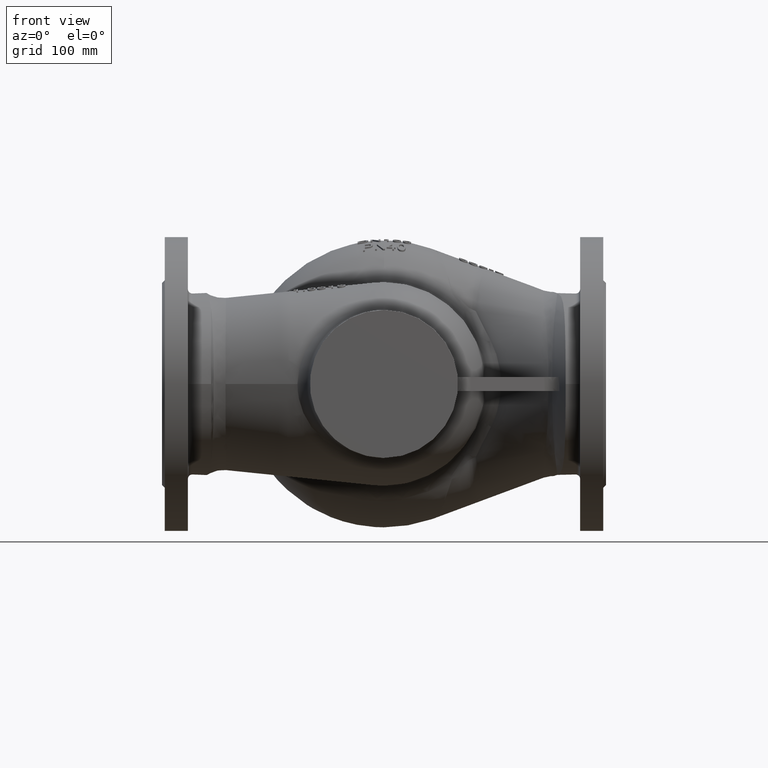
[diagram: clean part render]
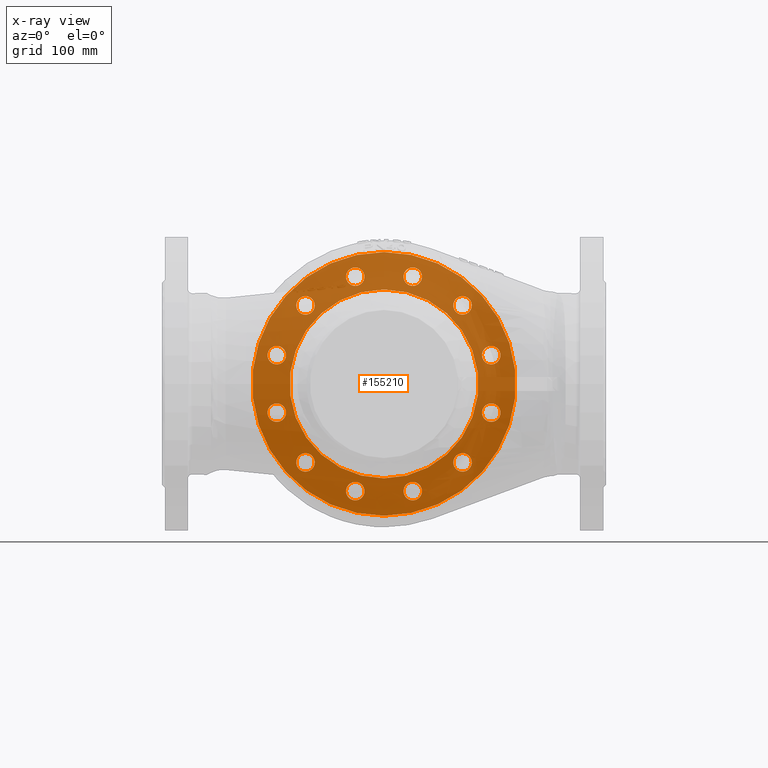
[diagram: x-ray — body ghosted, one internal face saturated and labeled with its STEP entity id]
A machine part, front view, then the same camera in x-ray: the body is ghosted and one INTERNAL B-rep face — a face not visible from any outside direction — is saturated and labeled: STEP entity #155210.
In plain terms, the highlighted planar face has unit normal (-0, 1, 0).
Its self-contained STEP definition (entity closure, byte-faithful):
#1566 = FACE_BOUND ( 'NONE', #41767, .T. ) ;
#2777 = EDGE_CURVE ( 'NONE', #49363, #27866, #170556, .T. ) ;
#3588 = ORIENTED_EDGE ( 'NONE', *, *, #113644, .F. ) ;
#4323 = EDGE_LOOP ( 'NONE', ( #37370, #74151 ) ) ;
#4451 = ORIENTED_EDGE ( 'NONE', *, *, #37313, .F. ) ;
#4462 = DIRECTION ( 'NONE',  ( 0.0000000000000000000, 0.0000000000000000000, 1.000000000000000000 ) ) ;
#4593 = CARTESIAN_POINT ( 'NONE',  ( 115.9110991546884900, 165.0000000000000000, 31.05828541230133100 ) ) ;
#4801 = CARTESIAN_POINT ( 'NONE',  ( -124.5713531925324400, 165.0000000000000000, 36.05828541230302200 ) ) ;
#5399 = DIRECTION ( 'NONE',  ( 0.0000000000000000000, 0.0000000000000000000, 1.000000000000000000 ) ) ;
#6476 = FACE_BOUND ( 'NONE', #88630, .T. ) ;
#7048 = CARTESIAN_POINT ( 'NONE',  ( 31.05828541230254600, 165.0000000000000000, -125.9110991546881700 ) ) ;
#7117 = VERTEX_POINT ( 'NONE', #4801 ) ;
#7181 = ORIENTED_EDGE ( 'NONE', *, *, #11656, .F. ) ;
#7432 = DIRECTION ( 'NONE',  ( -0.0000000000000000000, 1.000000000000000000, -0.0000000000000000000 ) ) ;
#7672 = EDGE_CURVE ( 'NONE', #27866, #49363, #106890, .T. ) ;
#7887 = CARTESIAN_POINT ( 'NONE',  ( -31.05828541230173600, 165.0000000000000000, 115.9110991546883900 ) ) ;
#8056 = CIRCLE ( 'NONE', #115933, 10.00000000000000900 ) ;
#8603 = EDGE_CURVE ( 'NONE', #198834, #57468, #45863, .T. ) ;
#8755 = DIRECTION ( 'NONE',  ( 0.0000000000000000000, 0.0000000000000000000, 1.000000000000000000 ) ) ;
#9073 = DIRECTION ( 'NONE',  ( 0.0000000000000000000, 0.0000000000000000000, 1.000000000000000000 ) ) ;
#10765 = DIRECTION ( 'NONE',  ( -0.0000000000000000000, 1.000000000000000000, -0.0000000000000000000 ) ) ;
#10836 = EDGE_CURVE ( 'NONE', #7117, #61331, #89666, .T. ) ;
#11003 = EDGE_LOOP ( 'NONE', ( #116525, #23359 ) ) ;
#11124 = AXIS2_PLACEMENT_3D ( 'NONE', #31817, #140964, #47545 ) ;
#11320 = CARTESIAN_POINT ( 'NONE',  ( -36.05828541230258100, 165.0000000000000000, -124.5713531925325400 ) ) ;
#11656 = EDGE_CURVE ( 'NONE', #190858, #179636, #28589, .T. ) ;
#14538 = CARTESIAN_POINT ( 'NONE',  ( 31.05828541230254600, 165.0000000000000000, -115.9110991546881700 ) ) ;
#15091 = CIRCLE ( 'NONE', #177538, 142.5000000000000000 ) ;
#15852 = CIRCLE ( 'NONE', #79934, 10.00000000000000900 ) ;
#17120 = ORIENTED_EDGE ( 'NONE', *, *, #122820, .F. ) ;
#17903 = ORIENTED_EDGE ( 'NONE', *, *, #2777, .F. ) ;
#18729 = CARTESIAN_POINT ( 'NONE',  ( 26.05828541230330600, 165.0000000000000000, 107.2508451168436100 ) ) ;
#19380 = EDGE_CURVE ( 'NONE', #61331, #7117, #35668, .T. ) ;
#20000 = CIRCLE ( 'NONE', #146122, 10.00000000000000900 ) ;
#20008 = AXIS2_PLACEMENT_3D ( 'NONE', #182807, #89288, #198478 ) ;
#20283 = DIRECTION ( 'NONE',  ( 0.0000000000000000000, 0.0000000000000000000, 1.000000000000000000 ) ) ;
#21574 = DIRECTION ( 'NONE',  ( -0.0000000000000000000, 1.000000000000000000, -0.0000000000000000000 ) ) ;
#22186 = ORIENTED_EDGE ( 'NONE', *, *, #200141, .F. ) ;
#22308 = CIRCLE ( 'NONE', #36040, 10.00000000000000900 ) ;
#22891 = EDGE_CURVE ( 'NONE', #161637, #155913, #116118, .T. ) ;
#23359 = ORIENTED_EDGE ( 'NONE', *, *, #10836, .F. ) ;
#23569 = VERTEX_POINT ( 'NONE', #171201 ) ;
#23593 = DIRECTION ( 'NONE',  ( 0.0000000000000000000, 0.0000000000000000000, 1.000000000000000000 ) ) ;
#23810 = DIRECTION ( 'NONE',  ( -0.0000000000000000000, 1.000000000000000000, -0.0000000000000000000 ) ) ;
#24488 = AXIS2_PLACEMENT_3D ( 'NONE', #39583, #148728, #55309 ) ;
#25398 = AXIS2_PLACEMENT_3D ( 'NONE', #91141, #200316, #106831 ) ;
#25973 = DIRECTION ( 'NONE',  ( -0.0000000000000000000, 1.000000000000000000, -0.0000000000000000000 ) ) ;
#27866 = VERTEX_POINT ( 'NONE', #44115 ) ;
#28589 = CIRCLE ( 'NONE', #72341, 10.00000000000000900 ) ;
#28995 = PLANE ( 'NONE',  #88879 ) ;
#30246 = DIRECTION ( 'NONE',  ( 0.0000000000000000000, 0.0000000000000000000, 1.000000000000000000 ) ) ;
#31343 = CARTESIAN_POINT ( 'NONE',  ( 31.05828541230338400, 165.0000000000000000, 115.9110991546879500 ) ) ;
#31817 = CARTESIAN_POINT ( 'NONE',  ( 84.85281374238644500, 165.0000000000000000, 84.85281374238493900 ) ) ;
#34099 = EDGE_CURVE ( 'NONE', #103214, #185852, #191344, .T. ) ;
#35668 = CIRCLE ( 'NONE', #25398, 10.00000000000000500 ) ;
#36040 = AXIS2_PLACEMENT_3D ( 'NONE', #115032, #21574, #130742 ) ;
#37313 = EDGE_CURVE ( 'NONE', #179636, #190858, #8056, .T. ) ;
#37370 = ORIENTED_EDGE ( 'NONE', *, *, #42630, .T. ) ;
#38198 = FACE_BOUND ( 'NONE', #88920, .T. ) ;
#39583 = CARTESIAN_POINT ( 'NONE',  ( -31.05828541230256700, 165.0000000000000000, -115.9110991546881600 ) ) ;
#39700 = EDGE_CURVE ( 'NONE', #182898, #102911, #42147, .T. ) ;
#40381 = DIRECTION ( 'NONE',  ( -0.0000000000000000000, 1.000000000000000000, -0.0000000000000000000 ) ) ;
#41767 = EDGE_LOOP ( 'NONE', ( #7181, #4451 ) ) ;
#42147 = CIRCLE ( 'NONE', #24488, 10.00000000000000900 ) ;
#42234 = EDGE_CURVE ( 'NONE', #80204, #169648, #20000, .T. ) ;
#42630 = EDGE_CURVE ( 'NONE', #188814, #23569, #15091, .T. ) ;
#43099 = FACE_BOUND ( 'NONE', #192046, .T. ) ;
#44115 = CARTESIAN_POINT ( 'NONE',  ( 89.85281374238454100, 165.0000000000000000, -93.51306778023121100 ) ) ;
#44716 = DIRECTION ( 'NONE',  ( -0.0000000000000000000, 1.000000000000000000, 0.0000000000000000000 ) ) ;
#45863 = CIRCLE ( 'NONE', #174265, 10.00000000000000900 ) ;
#47545 = DIRECTION ( 'NONE',  ( 0.0000000000000000000, 0.0000000000000000000, 1.000000000000000000 ) ) ;
#47593 = EDGE_CURVE ( 'NONE', #102911, #182898, #88132, .T. ) ;
#47730 = AXIS2_PLACEMENT_3D ( 'NONE', #192386, #98887, #5399 ) ;
#47785 = EDGE_CURVE ( 'NONE', #57468, #198834, #197994, .T. ) ;
#48009 = FACE_BOUND ( 'NONE', #145300, .T. ) ;
#49363 = VERTEX_POINT ( 'NONE', #109693 ) ;
#49852 = CIRCLE ( 'NONE', #11124, 10.00000000000000900 ) ;
#52108 = ORIENTED_EDGE ( 'NONE', *, *, #42234, .F. ) ;
#52703 = CARTESIAN_POINT ( 'NONE',  ( -115.9110991546882700, 165.0000000000000000, -31.05828541230213700 ) ) ;
#52927 = FACE_BOUND ( 'NONE', #86042, .T. ) ;
#54991 = DIRECTION ( 'NONE',  ( -0.0000000000000000000, 1.000000000000000000, -0.0000000000000000000 ) ) ;
#55309 = DIRECTION ( 'NONE',  ( 0.0000000000000000000, 0.0000000000000000000, 1.000000000000000000 ) ) ;
#55653 = DIRECTION ( 'NONE',  ( 0.0000000000000000000, 1.000000000000000000, 0.0000000000000000000 ) ) ;
#56108 = DIRECTION ( 'NONE',  ( 0.0000000000000000000, 0.0000000000000000000, 1.000000000000000000 ) ) ;
#56307 = EDGE_CURVE ( 'NONE', #23569, #188814, #148835, .T. ) ;
#56936 = CARTESIAN_POINT ( 'NONE',  ( 93.51306778023088400, 165.0000000000000000, 89.85281374238486800 ) ) ;
#57468 = VERTEX_POINT ( 'NONE', #18729 ) ;
#58742 = AXIS2_PLACEMENT_3D ( 'NONE', #78055, #187253, #93742 ) ;
#58957 = CIRCLE ( 'NONE', #98786, 10.00000000000000900 ) ;
#59115 = CARTESIAN_POINT ( 'NONE',  ( 0.0000000000000000000, 165.0000000000000000, 0.0000000000000000000 ) ) ;
#59352 = CARTESIAN_POINT ( 'NONE',  ( -31.05828541230173600, 165.0000000000000000, 115.9110991546883900 ) ) ;
#60371 = EDGE_LOOP ( 'NONE', ( #73733, #67012 ) ) ;
#61331 = VERTEX_POINT ( 'NONE', #67570 ) ;
#61966 = VERTEX_POINT ( 'NONE', #113684 ) ;
#62079 = AXIS2_PLACEMENT_3D ( 'NONE', #52703, #161824, #68380 ) ;
#62689 = CARTESIAN_POINT ( 'NONE',  ( -89.85281374238518000, 165.0000000000000000, 93.51306778023058500 ) ) ;
#62769 = DIRECTION ( 'NONE',  ( -0.0000000000000000000, 1.000000000000000000, -0.0000000000000000000 ) ) ;
#62812 = VERTEX_POINT ( 'NONE', #149102 ) ;
#63716 = ORIENTED_EDGE ( 'NONE', *, *, #134452, .F. ) ;
#64955 = EDGE_LOOP ( 'NONE', ( #90449, #138532 ) ) ;
#65624 = DIRECTION ( 'NONE',  ( -0.0000000000000000000, 1.000000000000000000, -0.0000000000000000000 ) ) ;
#66368 = CARTESIAN_POINT ( 'NONE',  ( 76.19255970454200600, 165.0000000000000000, 79.85281374238502400 ) ) ;
#67006 = AXIS2_PLACEMENT_3D ( 'NONE', #149537, #40381, #56108 ) ;
#67012 = ORIENTED_EDGE ( 'NONE', *, *, #123368, .F. ) ;
#67254 = ORIENTED_EDGE ( 'NONE', *, *, #47785, .F. ) ;
#67570 = CARTESIAN_POINT ( 'NONE',  ( -107.2508451168436900, 165.0000000000000000, 26.05828541230293600 ) ) ;
#68380 = DIRECTION ( 'NONE',  ( 0.0000000000000000000, 0.0000000000000000000, 1.000000000000000000 ) ) ;
#70940 = ORIENTED_EDGE ( 'NONE', *, *, #47593, .F. ) ;
#72341 = AXIS2_PLACEMENT_3D ( 'NONE', #91293, #200472, #106983 ) ;
#73733 = ORIENTED_EDGE ( 'NONE', *, *, #22891, .F. ) ;
#74151 = ORIENTED_EDGE ( 'NONE', *, *, #56307, .T. ) ;
#74785 = DIRECTION ( 'NONE',  ( 0.0000000000000000000, 0.0000000000000000000, 1.000000000000000000 ) ) ;
#75027 = DIRECTION ( 'NONE',  ( 0.0000000000000000000, 0.0000000000000000000, 1.000000000000000000 ) ) ;
#78055 = CARTESIAN_POINT ( 'NONE',  ( -115.9110991546882700, 165.0000000000000000, -31.05828541230213700 ) ) ;
#78456 = CIRCLE ( 'NONE', #62079, 10.00000000000000500 ) ;
#79696 = FACE_BOUND ( 'NONE', #11003, .T. ) ;
#79934 = AXIS2_PLACEMENT_3D ( 'NONE', #4593, #113754, #20283 ) ;
#80204 = VERTEX_POINT ( 'NONE', #62689 ) ;
#80828 = CIRCLE ( 'NONE', #47730, 10.00000000000000900 ) ;
#81716 = CARTESIAN_POINT ( 'NONE',  ( -105.9110991546882700, 165.0000000000000000, -31.05828541230217300 ) ) ;
#84585 = FACE_BOUND ( 'NONE', #60371, .T. ) ;
#85388 = ORIENTED_EDGE ( 'NONE', *, *, #116362, .F. ) ;
#86042 = EDGE_LOOP ( 'NONE', ( #17120, #3588 ) ) ;
#86094 = DIRECTION ( 'NONE',  ( -0.0000000000000000000, 1.000000000000000000, -0.0000000000000000000 ) ) ;
#88132 = CIRCLE ( 'NONE', #134470, 10.00000000000000900 ) ;
#88249 = CIRCLE ( 'NONE', #180993, 10.00000000000000900 ) ;
#88630 = EDGE_LOOP ( 'NONE', ( #17903, #114754 ) ) ;
#88879 = AXIS2_PLACEMENT_3D ( 'NONE', #138142, #44716, #153847 ) ;
#88920 = EDGE_LOOP ( 'NONE', ( #63716, #166818 ) ) ;
#89288 = DIRECTION ( 'NONE',  ( -0.0000000000000000000, 1.000000000000000000, -0.0000000000000000000 ) ) ;
#89462 = FACE_BOUND ( 'NONE', #163722, .T. ) ;
#89666 = CIRCLE ( 'NONE', #20008, 10.00000000000000500 ) ;
#90027 = CARTESIAN_POINT ( 'NONE',  ( -79.85281374238528000, 165.0000000000000000, 76.19255970454172200 ) ) ;
#90449 = ORIENTED_EDGE ( 'NONE', *, *, #197368, .F. ) ;
#90465 = VERTEX_POINT ( 'NONE', #81716 ) ;
#90525 = AXIS2_PLACEMENT_3D ( 'NONE', #174756, #65624, #159065 ) ;
#91006 = DIRECTION ( 'NONE',  ( -0.0000000000000000000, 1.000000000000000000, -0.0000000000000000000 ) ) ;
#91141 = CARTESIAN_POINT ( 'NONE',  ( -115.9110991546880700, 165.0000000000000000, 31.05828541230297900 ) ) ;
#91293 = CARTESIAN_POINT ( 'NONE',  ( 115.9110991546878500, 165.0000000000000000, -31.05828541230378500 ) ) ;
#91524 = EDGE_CURVE ( 'NONE', #107772, #168326, #118718, .T. ) ;
#93742 = DIRECTION ( 'NONE',  ( 0.0000000000000000000, 0.0000000000000000000, 1.000000000000000000 ) ) ;
#94103 = DIRECTION ( 'NONE',  ( 0.0000000000000000000, 0.0000000000000000000, 1.000000000000000000 ) ) ;
#97815 = CARTESIAN_POINT ( 'NONE',  ( -31.05828541230166800, 165.0000000000000000, 125.9110991546884000 ) ) ;
#97879 = AXIS2_PLACEMENT_3D ( 'NONE', #196033, #102539, #9073 ) ;
#97934 = DIRECTION ( 'NONE',  ( 0.0000000000000000000, 1.000000000000000000, 0.0000000000000000000 ) ) ;
#98786 = AXIS2_PLACEMENT_3D ( 'NONE', #7887, #117061, #23593 ) ;
#98887 = DIRECTION ( 'NONE',  ( -0.0000000000000000000, 1.000000000000000000, -0.0000000000000000000 ) ) ;
#100911 = CARTESIAN_POINT ( 'NONE',  ( -31.05828541230256700, 165.0000000000000000, -115.9110991546881600 ) ) ;
#102222 = DIRECTION ( 'NONE',  ( -0.0000000000000000000, 1.000000000000000000, -0.0000000000000000000 ) ) ;
#102297 = EDGE_CURVE ( 'NONE', #139376, #179460, #191249, .T. ) ;
#102539 = DIRECTION ( 'NONE',  ( -0.0000000000000000000, 1.000000000000000000, -0.0000000000000000000 ) ) ;
#102911 = VERTEX_POINT ( 'NONE', #186535 ) ;
#103214 = VERTEX_POINT ( 'NONE', #191253 ) ;
#104243 = CARTESIAN_POINT ( 'NONE',  ( 0.0000000000000000000, 165.0000000000000000, 0.0000000000000000000 ) ) ;
#106831 = DIRECTION ( 'NONE',  ( 0.0000000000000000000, 0.0000000000000000000, 1.000000000000000000 ) ) ;
#106890 = CIRCLE ( 'NONE', #90525, 10.00000000000000900 ) ;
#106983 = DIRECTION ( 'NONE',  ( 0.0000000000000000000, 0.0000000000000000000, 1.000000000000000000 ) ) ;
#107772 = VERTEX_POINT ( 'NONE', #56936 ) ;
#108521 = CARTESIAN_POINT ( 'NONE',  ( 125.9110991546884900, 165.0000000000000000, 31.05828541230122400 ) ) ;
#109693 = CARTESIAN_POINT ( 'NONE',  ( 79.85281374238475400, 165.0000000000000000, -76.19255970454229000 ) ) ;
#113644 = EDGE_CURVE ( 'NONE', #144930, #61966, #88249, .T. ) ;
#113684 = CARTESIAN_POINT ( 'NONE',  ( 31.05828541230254600, 165.0000000000000000, -105.9110991546881600 ) ) ;
#113754 = DIRECTION ( 'NONE',  ( -0.0000000000000000000, 1.000000000000000000, -0.0000000000000000000 ) ) ;
#114338 = EDGE_CURVE ( 'NONE', #132850, #90465, #78456, .T. ) ;
#114754 = ORIENTED_EDGE ( 'NONE', *, *, #7672, .F. ) ;
#115032 = CARTESIAN_POINT ( 'NONE',  ( 31.05828541230254600, 165.0000000000000000, -115.9110991546881700 ) ) ;
#115933 = AXIS2_PLACEMENT_3D ( 'NONE', #119446, #25973, #135127 ) ;
#116118 = CIRCLE ( 'NONE', #199325, 10.00000000000000900 ) ;
#116362 = EDGE_CURVE ( 'NONE', #169648, #80204, #80828, .T. ) ;
#116525 = ORIENTED_EDGE ( 'NONE', *, *, #19380, .F. ) ;
#116605 = DIRECTION ( 'NONE',  ( 0.0000000000000000000, 0.0000000000000000000, 1.000000000000000000 ) ) ;
#117061 = DIRECTION ( 'NONE',  ( -0.0000000000000000000, 1.000000000000000000, -0.0000000000000000000 ) ) ;
#117279 = CARTESIAN_POINT ( 'NONE',  ( 31.05828541230338400, 165.0000000000000000, 115.9110991546879500 ) ) ;
#118718 = CIRCLE ( 'NONE', #198931, 10.00000000000000900 ) ;
#119446 = CARTESIAN_POINT ( 'NONE',  ( 115.9110991546878500, 165.0000000000000000, -31.05828541230378500 ) ) ;
#119703 = VERTEX_POINT ( 'NONE', #202190 ) ;
#119942 = DIRECTION ( 'NONE',  ( 0.0000000000000000000, 0.0000000000000000000, 1.000000000000000000 ) ) ;
#120676 = CARTESIAN_POINT ( 'NONE',  ( 0.0000000000000000000, 165.0000000000000000, 102.0999999999999900 ) ) ;
#121221 = FACE_BOUND ( 'NONE', #191023, .T. ) ;
#121684 = AXIS2_PLACEMENT_3D ( 'NONE', #59115, #168259, #74785 ) ;
#122820 = EDGE_CURVE ( 'NONE', #61966, #144930, #22308, .T. ) ;
#123368 = EDGE_CURVE ( 'NONE', #155913, #161637, #58957, .T. ) ;
#123719 = DIRECTION ( 'NONE',  ( -0.0000000000000000000, 1.000000000000000000, -0.0000000000000000000 ) ) ;
#124456 = EDGE_LOOP ( 'NONE', ( #127610, #22186 ) ) ;
#126111 = FACE_BOUND ( 'NONE', #124456, .T. ) ;
#126495 = CIRCLE ( 'NONE', #97879, 10.00000000000000900 ) ;
#127610 = ORIENTED_EDGE ( 'NONE', *, *, #145037, .F. ) ;
#130742 = DIRECTION ( 'NONE',  ( 0.0000000000000000000, 0.0000000000000000000, 1.000000000000000000 ) ) ;
#132850 = VERTEX_POINT ( 'NONE', #187458 ) ;
#132982 = DIRECTION ( 'NONE',  ( 0.0000000000000000000, 0.0000000000000000000, 1.000000000000000000 ) ) ;
#134452 = EDGE_CURVE ( 'NONE', #185852, #103214, #200079, .T. ) ;
#134470 = AXIS2_PLACEMENT_3D ( 'NONE', #100911, #7432, #116605 ) ;
#135127 = DIRECTION ( 'NONE',  ( 0.0000000000000000000, 0.0000000000000000000, 1.000000000000000000 ) ) ;
#138142 = CARTESIAN_POINT ( 'NONE',  ( -91.00000000000001400, 165.0000000000000000, 0.0000000000000000000 ) ) ;
#138532 = ORIENTED_EDGE ( 'NONE', *, *, #91524, .F. ) ;
#139376 = VERTEX_POINT ( 'NONE', #140278 ) ;
#140278 = CARTESIAN_POINT ( 'NONE',  ( 105.9110991546884700, 165.0000000000000000, 31.05828541230143400 ) ) ;
#140964 = DIRECTION ( 'NONE',  ( -0.0000000000000000000, 1.000000000000000000, -0.0000000000000000000 ) ) ;
#141016 = CARTESIAN_POINT ( 'NONE',  ( 0.0000000000000000000, 165.0000000000000000, 142.5000000000000000 ) ) ;
#144000 = ORIENTED_EDGE ( 'NONE', *, *, #149145, .F. ) ;
#144930 = VERTEX_POINT ( 'NONE', #7048 ) ;
#145037 = EDGE_CURVE ( 'NONE', #62812, #119703, #126495, .T. ) ;
#145300 = EDGE_LOOP ( 'NONE', ( #67254, #196447 ) ) ;
#146122 = AXIS2_PLACEMENT_3D ( 'NONE', #195714, #102222, #8755 ) ;
#148415 = CARTESIAN_POINT ( 'NONE',  ( 84.85281374238644500, 165.0000000000000000, 84.85281374238493900 ) ) ;
#148728 = DIRECTION ( 'NONE',  ( -0.0000000000000000000, 1.000000000000000000, -0.0000000000000000000 ) ) ;
#148835 = CIRCLE ( 'NONE', #121684, 142.5000000000000000 ) ;
#149073 = CARTESIAN_POINT ( 'NONE',  ( 0.0000000000000000000, 165.0000000000000000, 0.0000000000000000000 ) ) ;
#149102 = CARTESIAN_POINT ( 'NONE',  ( -76.19255970454145200, 165.0000000000000000, -79.85281374238556400 ) ) ;
#149145 = EDGE_CURVE ( 'NONE', #90465, #132850, #155668, .T. ) ;
#149537 = CARTESIAN_POINT ( 'NONE',  ( 84.85281374238465400, 165.0000000000000000, -84.85281374238674300 ) ) ;
#150242 = ORIENTED_EDGE ( 'NONE', *, *, #165188, .F. ) ;
#153665 = AXIS2_PLACEMENT_3D ( 'NONE', #179609, #86094, #195296 ) ;
#153847 = DIRECTION ( 'NONE',  ( 0.0000000000000000000, 0.0000000000000000000, 1.000000000000000000 ) ) ;
#155210 = ADVANCED_FACE ( 'NONE', ( #52927, #6476, #167638, #48009, #89462, #126111, #84585, #43099, #1566, #162734, #121221, #79696, #38198, #199308 ), #28995, .T. ) ;
#155668 = CIRCLE ( 'NONE', #58742, 10.00000000000000500 ) ;
#155913 = VERTEX_POINT ( 'NONE', #97815 ) ;
#159065 = DIRECTION ( 'NONE',  ( 0.0000000000000000000, 0.0000000000000000000, 1.000000000000000000 ) ) ;
#159698 = EDGE_LOOP ( 'NONE', ( #202631, #150242 ) ) ;
#160758 = CARTESIAN_POINT ( 'NONE',  ( -31.05828541230180700, 165.0000000000000000, 105.9110991546883900 ) ) ;
#161637 = VERTEX_POINT ( 'NONE', #160758 ) ;
#161824 = DIRECTION ( 'NONE',  ( -0.0000000000000000000, 1.000000000000000000, -0.0000000000000000000 ) ) ;
#162005 = CIRCLE ( 'NONE', #153665, 10.00000000000000900 ) ;
#162596 = ORIENTED_EDGE ( 'NONE', *, *, #39700, .F. ) ;
#162734 = FACE_BOUND ( 'NONE', #159698, .T. ) ;
#163722 = EDGE_LOOP ( 'NONE', ( #85388, #52108 ) ) ;
#164120 = DIRECTION ( 'NONE',  ( 0.0000000000000000000, 0.0000000000000000000, 1.000000000000000000 ) ) ;
#164739 = ORIENTED_EDGE ( 'NONE', *, *, #114338, .F. ) ;
#164790 = DIRECTION ( 'NONE',  ( 0.0000000000000000000, 0.0000000000000000000, 1.000000000000000000 ) ) ;
#165188 = EDGE_CURVE ( 'NONE', #179460, #139376, #15852, .T. ) ;
#165573 = AXIS2_PLACEMENT_3D ( 'NONE', #191440, #97934, #4462 ) ;
#165858 = AXIS2_PLACEMENT_3D ( 'NONE', #117279, #23810, #132982 ) ;
#166818 = ORIENTED_EDGE ( 'NONE', *, *, #34099, .F. ) ;
#167638 = FACE_BOUND ( 'NONE', #64955, .T. ) ;
#168259 = DIRECTION ( 'NONE',  ( -0.0000000000000000000, 1.000000000000000000, -0.0000000000000000000 ) ) ;
#168326 = VERTEX_POINT ( 'NONE', #66368 ) ;
#168500 = DIRECTION ( 'NONE',  ( -0.0000000000000000000, 1.000000000000000000, -0.0000000000000000000 ) ) ;
#169648 = VERTEX_POINT ( 'NONE', #90027 ) ;
#170556 = CIRCLE ( 'NONE', #67006, 10.00000000000000900 ) ;
#170790 = CARTESIAN_POINT ( 'NONE',  ( 36.05828541230346200, 165.0000000000000000, 124.5713531925322900 ) ) ;
#171201 = CARTESIAN_POINT ( 'NONE',  ( 1.745121688784978100E-014, 165.0000000000000000, -142.5000000000000000 ) ) ;
#174265 = AXIS2_PLACEMENT_3D ( 'NONE', #31343, #62769, #94103 ) ;
#174756 = CARTESIAN_POINT ( 'NONE',  ( 84.85281374238465400, 165.0000000000000000, -84.85281374238674300 ) ) ;
#177538 = AXIS2_PLACEMENT_3D ( 'NONE', #104243, #10765, #119942 ) ;
#179460 = VERTEX_POINT ( 'NONE', #108521 ) ;
#179518 = AXIS2_PLACEMENT_3D ( 'NONE', #184530, #91006, #200186 ) ;
#179609 = CARTESIAN_POINT ( 'NONE',  ( -84.85281374238584800, 165.0000000000000000, -84.85281374238553600 ) ) ;
#179636 = VERTEX_POINT ( 'NONE', #186339 ) ;
#180993 = AXIS2_PLACEMENT_3D ( 'NONE', #14538, #123719, #30246 ) ;
#182807 = CARTESIAN_POINT ( 'NONE',  ( -115.9110991546880700, 165.0000000000000000, 31.05828541230297900 ) ) ;
#182898 = VERTEX_POINT ( 'NONE', #11320 ) ;
#183837 = CARTESIAN_POINT ( 'NONE',  ( 107.2508451168435200, 165.0000000000000000, -26.05828541230368200 ) ) ;
#183974 = AXIS2_PLACEMENT_3D ( 'NONE', #149073, #55653, #164790 ) ;
#184530 = CARTESIAN_POINT ( 'NONE',  ( 115.9110991546884900, 165.0000000000000000, 31.05828541230133100 ) ) ;
#185852 = VERTEX_POINT ( 'NONE', #120676 ) ;
#186339 = CARTESIAN_POINT ( 'NONE',  ( 124.5713531925321900, 165.0000000000000000, -36.05828541230389600 ) ) ;
#186535 = CARTESIAN_POINT ( 'NONE',  ( -26.05828541230255300, 165.0000000000000000, -107.2508451168437600 ) ) ;
#187253 = DIRECTION ( 'NONE',  ( -0.0000000000000000000, 1.000000000000000000, -0.0000000000000000000 ) ) ;
#187458 = CARTESIAN_POINT ( 'NONE',  ( -125.9110991546882900, 165.0000000000000000, -31.05828541230210500 ) ) ;
#188814 = VERTEX_POINT ( 'NONE', #141016 ) ;
#190858 = VERTEX_POINT ( 'NONE', #183837 ) ;
#191023 = EDGE_LOOP ( 'NONE', ( #70940, #162596 ) ) ;
#191249 = CIRCLE ( 'NONE', #179518, 10.00000000000000900 ) ;
#191253 = CARTESIAN_POINT ( 'NONE',  ( 1.250364381929447500E-014, 165.0000000000000000, -102.0999999999999900 ) ) ;
#191344 = CIRCLE ( 'NONE', #165573, 102.0999999999999900 ) ;
#191440 = CARTESIAN_POINT ( 'NONE',  ( 0.0000000000000000000, 165.0000000000000000, 0.0000000000000000000 ) ) ;
#192046 = EDGE_LOOP ( 'NONE', ( #144000, #164739 ) ) ;
#192386 = CARTESIAN_POINT ( 'NONE',  ( -84.85281374238523700, 165.0000000000000000, 84.85281374238614700 ) ) ;
#195296 = DIRECTION ( 'NONE',  ( 0.0000000000000000000, 0.0000000000000000000, 1.000000000000000000 ) ) ;
#195714 = CARTESIAN_POINT ( 'NONE',  ( -84.85281374238523700, 165.0000000000000000, 84.85281374238614700 ) ) ;
#196033 = CARTESIAN_POINT ( 'NONE',  ( -84.85281374238584800, 165.0000000000000000, -84.85281374238553600 ) ) ;
#196447 = ORIENTED_EDGE ( 'NONE', *, *, #8603, .F. ) ;
#197368 = EDGE_CURVE ( 'NONE', #168326, #107772, #49852, .T. ) ;
#197994 = CIRCLE ( 'NONE', #165858, 10.00000000000000900 ) ;
#198478 = DIRECTION ( 'NONE',  ( 0.0000000000000000000, 0.0000000000000000000, 1.000000000000000000 ) ) ;
#198834 = VERTEX_POINT ( 'NONE', #170790 ) ;
#198931 = AXIS2_PLACEMENT_3D ( 'NONE', #148415, #54991, #164120 ) ;
#199308 = FACE_OUTER_BOUND ( 'NONE', #4323, .T. ) ;
#199325 = AXIS2_PLACEMENT_3D ( 'NONE', #59352, #168500, #75027 ) ;
#200079 = CIRCLE ( 'NONE', #183974, 102.0999999999999900 ) ;
#200141 = EDGE_CURVE ( 'NONE', #119703, #62812, #162005, .T. ) ;
#200186 = DIRECTION ( 'NONE',  ( 0.0000000000000000000, 0.0000000000000000000, 1.000000000000000000 ) ) ;
#200316 = DIRECTION ( 'NONE',  ( -0.0000000000000000000, 1.000000000000000000, -0.0000000000000000000 ) ) ;
#200472 = DIRECTION ( 'NONE',  ( -0.0000000000000000000, 1.000000000000000000, -0.0000000000000000000 ) ) ;
#202190 = CARTESIAN_POINT ( 'NONE',  ( -93.51306778023024400, 165.0000000000000000, -89.85281374238552100 ) ) ;
#202631 = ORIENTED_EDGE ( 'NONE', *, *, #102297, .F. ) ;